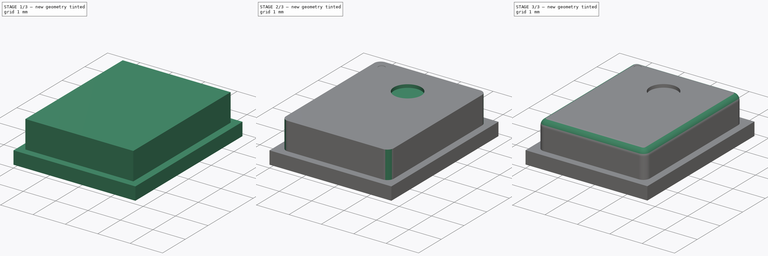
[diagram: build sequence overview — one tinted view per stage of 3, left to right]
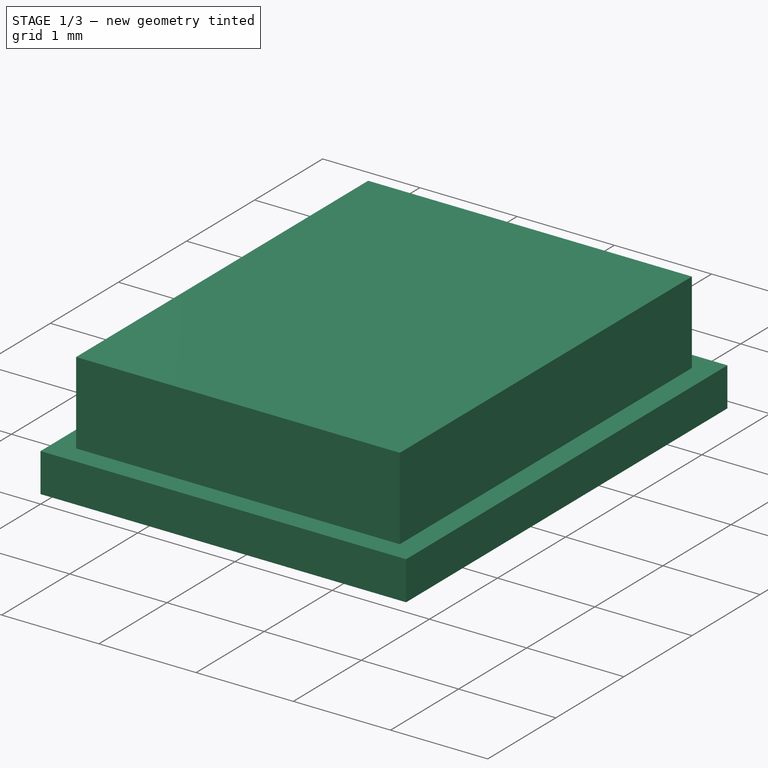
[diagram: stage 1 of 3 — iso view after this stage's code; geometry added in this stage tinted green]
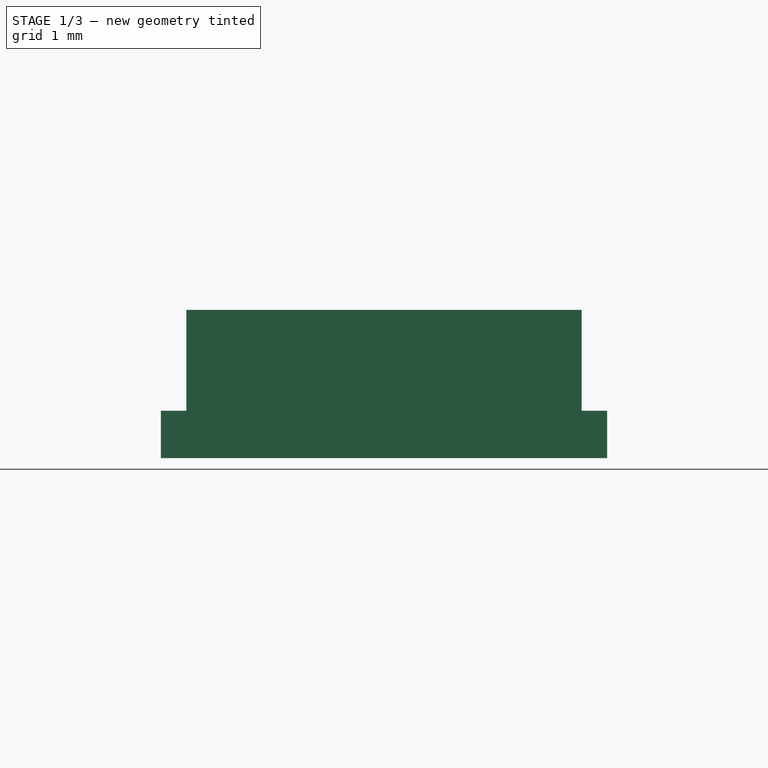
[diagram: stage 1 of 3 — front view after this stage's code; geometry added in this stage tinted green]
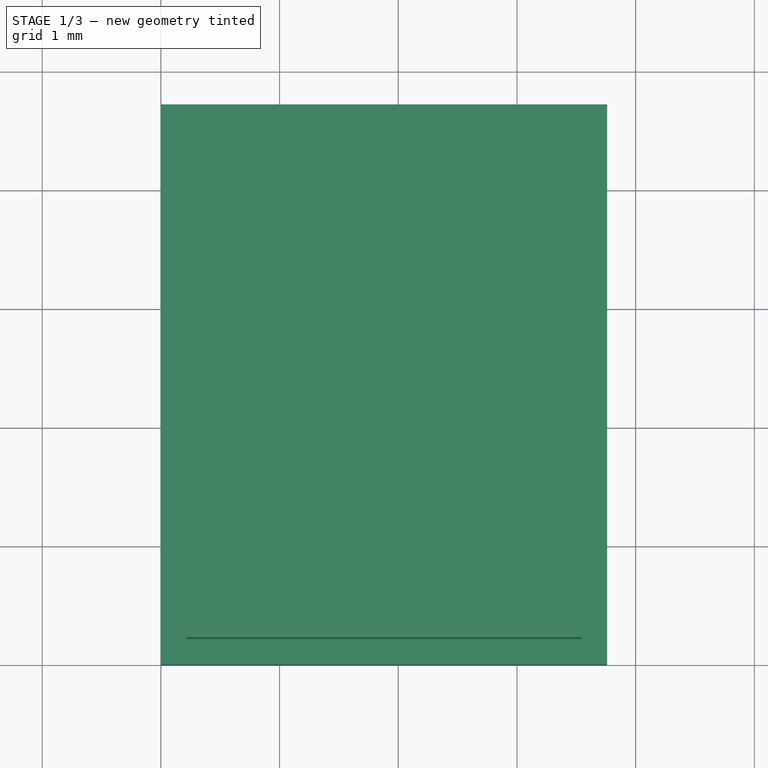
[diagram: stage 1 of 3 — top view after this stage's code; geometry added in this stage tinted green]
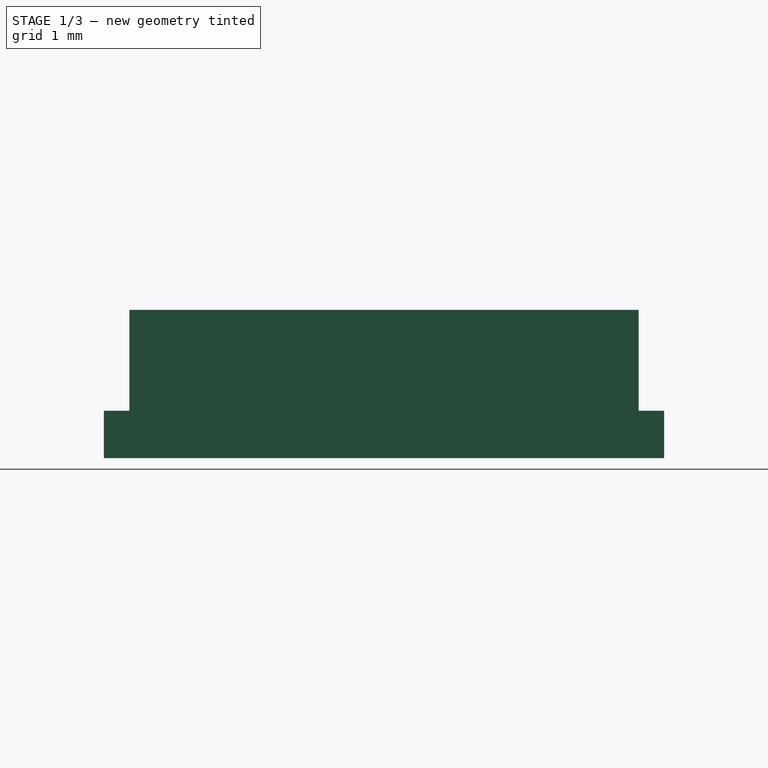
[diagram: stage 1 of 3 — right view after this stage's code; geometry added in this stage tinted green]
FCSTD DOCUMENT  (FreeCAD 0.15R4671 (Git))
Label: ST_HLGA-6_3.76x4.72mm_P1.65mm
License: All rights reserved
LicenseURL: http://es.wikipedia.org/wiki/Todos_los_derechos_reservados
objects: Sketcher::SketchObject×5, PartDesign::Pad×3, PartDesign::Pocket×2, PartDesign::Fillet×2, Part::Feature×1
note: 18 computed .brp shape members not serialized (recipe doc carries the construction recipe); baked Part::Feature solids carry a one-line shape summary decoded from their .brp

FEATURE [Sketcher::SketchObject] Sketch
  sketch-geometry (4):
    g0: LineSegment StartX=0 StartY=0 StartZ=0 EndX=3.76 EndY=0 EndZ=0
    g1: LineSegment StartX=3.76 StartY=0 StartZ=0 EndX=3.76 EndY=4.72 EndZ=0
    g2: LineSegment StartX=3.76 StartY=4.72 StartZ=0 EndX=0 EndY=4.72 EndZ=0
    g3: LineSegment StartX=0 StartY=4.72 StartZ=0 EndX=0 EndY=0 EndZ=0
  constraints (11):
    c: Coincident(g0,g1)
    c: Coincident(g1,g2)
    c: Coincident(g2,g3)
    c: Coincident(g3,g0)
    c: Horizontal(g0)
    c: Horizontal(g2)
    c: Vertical(g1)
    c: Vertical(g3)
    c: Coincident(g0,g-1)
    c: DistanceY(g1) = 4.72
    c: DistanceX(g2) = -3.76
FEATURE [PartDesign::Pad] Pad
  Length = 0.4
  Length2 = 100
  Sketch = -> Sketch
  Type = 0
FEATURE [Sketcher::SketchObject] Sketch001
  ExternalGeometry = -> [Pad]
  Placement = pos=(0,0,0.4) rot=(0,0,1;0rad)
  Support = -> Pad [Face6]
  sketch-geometry (8):
    g0: LineSegment StartX=0.215 StartY=4.505 StartZ=0 EndX=3.545 EndY=4.505 EndZ=0
    g1: LineSegment StartX=3.545 StartY=4.505 StartZ=0 EndX=3.545 EndY=0.215 EndZ=0
    g2: LineSegment StartX=3.545 StartY=0.215 StartZ=0 EndX=0.215 EndY=0.215 EndZ=0
    g3: LineSegment StartX=0.215 StartY=0.215 StartZ=0 EndX=0.215 EndY=4.505 EndZ=0
    g4: LineSegment [constr] StartX=0.215 StartY=4.505 StartZ=0 EndX=0.215 EndY=4.72 EndZ=0
    g5: LineSegment [constr] StartX=0.215 StartY=4.505 StartZ=0 EndX=0 EndY=4.505 EndZ=0
    g6: LineSegment [constr] StartX=3.545 StartY=0.215 StartZ=0 EndX=3.76 EndY=0.215 EndZ=0
    g7: LineSegment [constr] StartX=3.545 StartY=0.215 StartZ=0 EndX=3.545 EndY=0 EndZ=0
  constraints (24):
    c: Coincident(g0,g1)
    c: Coincident(g1,g2)
    c: Coincident(g2,g3)
    c: Coincident(g3,g0)
    c: Horizontal(g0)
    c: Horizontal(g2)
    c: Vertical(g1)
    c: Vertical(g3)
    c: DistanceY(g3) = 4.29
    c: DistanceX(g2) = -3.33
    c: Coincident(g4,g0)
    c: PointOnObject(g4,g-4)
    c: Vertical(g4)
    c: Coincident(g5,g0)
    c: PointOnObject(g5,g-5)
    c: Horizontal(g5)
    c: Coincident(g6,g1)
    c: PointOnObject(g6,g-3)
    c: Horizontal(g6)
    c: Coincident(g7,g1)
    c: PointOnObject(g7,g-6)
    c: Vertical(g7)
    c: Equal(g6,g5)
    c: Equal(g4,g7)
FEATURE [PartDesign::Pad] Pad001
  Length = 0.85
  Length2 = 100
  Sketch = -> Sketch001
  Type = 0
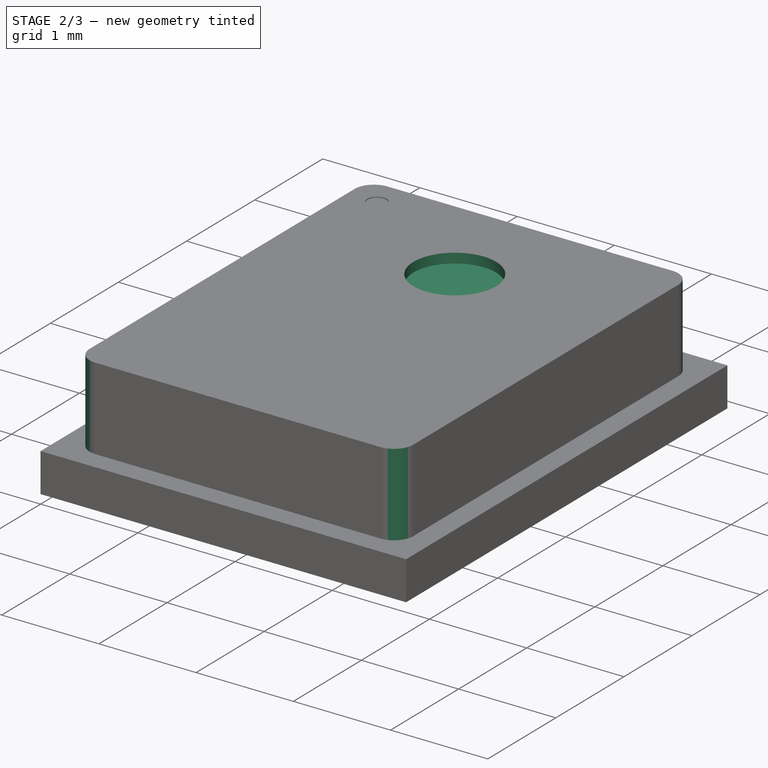
[diagram: stage 2 of 3 — iso view after this stage's code; geometry added in this stage tinted green]
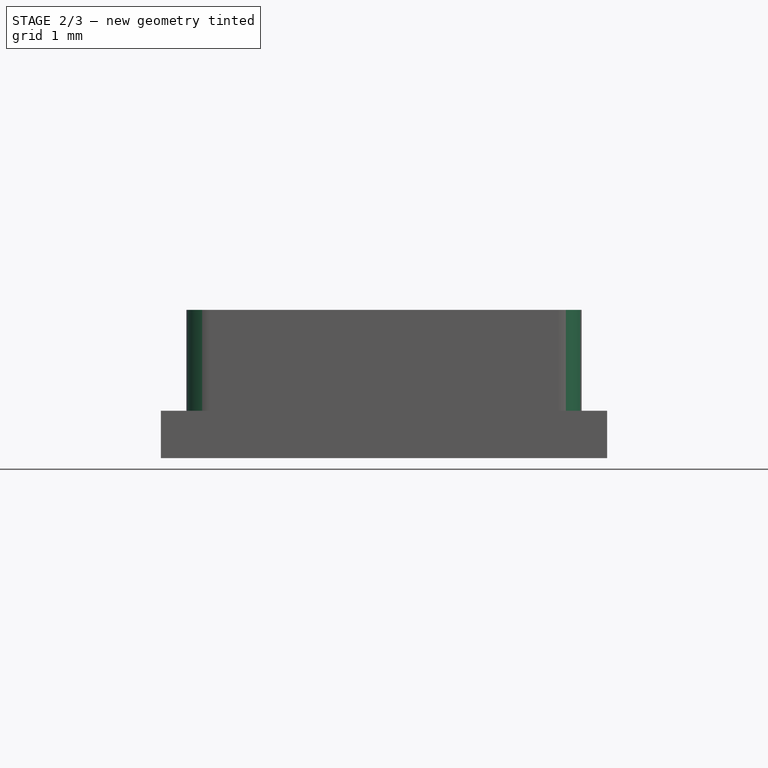
[diagram: stage 2 of 3 — front view after this stage's code; geometry added in this stage tinted green]
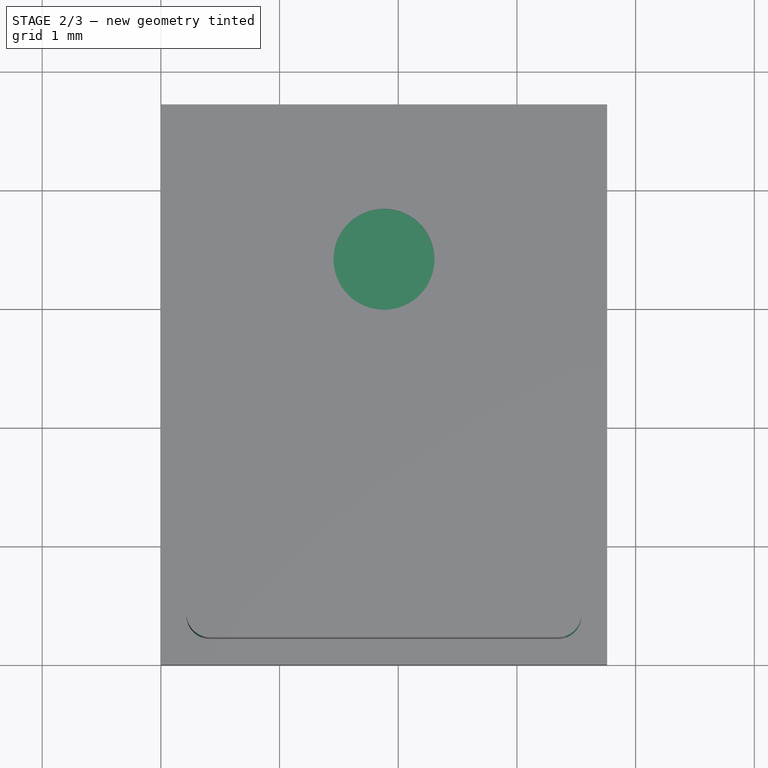
[diagram: stage 2 of 3 — top view after this stage's code; geometry added in this stage tinted green]
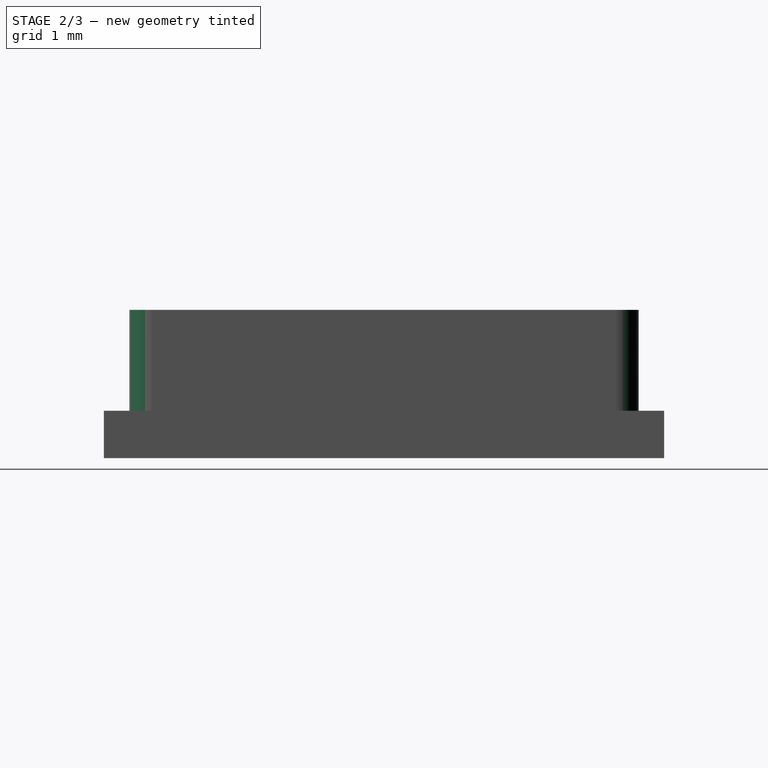
[diagram: stage 2 of 3 — right view after this stage's code; geometry added in this stage tinted green]
FEATURE [Sketcher::SketchObject] Sketch002
  ExternalGeometry = -> [Pad001]
  Placement = pos=(0,0,1.25) rot=(0,0,1;0rad)
  Support = -> Pad001 [Face11]
  sketch-geometry (4):
    g0: LineSegment [constr] StartX=0 StartY=4.72 StartZ=0 EndX=1.88 EndY=4.72 EndZ=0
    g1: LineSegment [constr] StartX=1.88 StartY=4.72 StartZ=0 EndX=3.76 EndY=4.72 EndZ=0
    g2: LineSegment [constr] StartX=1.88 StartY=4.72 StartZ=0 EndX=1.88 EndY=3.4 EndZ=0
    g3: Circle CenterX=1.88 CenterY=3.4 CenterZ=0 NormalX=0 NormalY=0 NormalZ=1 Radius=0.425
  constraints (11):
    c: Horizontal(g0)
    c: Coincident(g1,g0)
    c: Coincident(g1,g-4)
    c: Horizontal(g1)
    c: Coincident(g0,g-3)
    c: Equal(g0,g1)
    c: Coincident(g2,g0)
    c: Vertical(g2)
    c: DistanceY(g2) = -1.32
    c: Coincident(g3,g2)
    c: Radius(g3) = 0.425
FEATURE [PartDesign::Pocket] Pocket
  Length = 0.1
  Sketch = -> Sketch002
  Type = 0
FEATURE [Sketcher::SketchObject] Sketch003
  ExternalGeometry = -> [Pocket]
  Placement = pos=(0,0,1.25) rot=(0,0,1;0rad)
  Support = -> Pocket [Face11]
  sketch-geometry (3):
    g0: Circle CenterX=0.515 CenterY=4.205 CenterZ=0 NormalX=0 NormalY=0 NormalZ=1 Radius=0.1
    g1: LineSegment [constr] StartX=0.515 StartY=4.205 StartZ=0 EndX=0.215 EndY=4.205 EndZ=0
    g2: LineSegment [constr] StartX=0.515 StartY=4.205 StartZ=0 EndX=0.515 EndY=4.505 EndZ=0
  constraints (9):
    c: Coincident(g1,g0)
    c: PointOnObject(g1,g-4)
    c: Coincident(g2,g0)
    c: PointOnObject(g2,g-3)
    c: Vertical(g2)
    c: Horizontal(g1)
    c: Equal(g1,g2)
    c: DistanceX(g1) = -0.3
    c: Radius(g0) = 0.1
FEATURE [PartDesign::Pocket] Pocket001
  Length = 0.01
  Sketch = -> Sketch003
  Type = 0
FEATURE [PartDesign::Fillet] Fillet
  Base = -> Pocket001 [Edge19,Edge17,Edge23,Edge21]
  Radius = 0.2
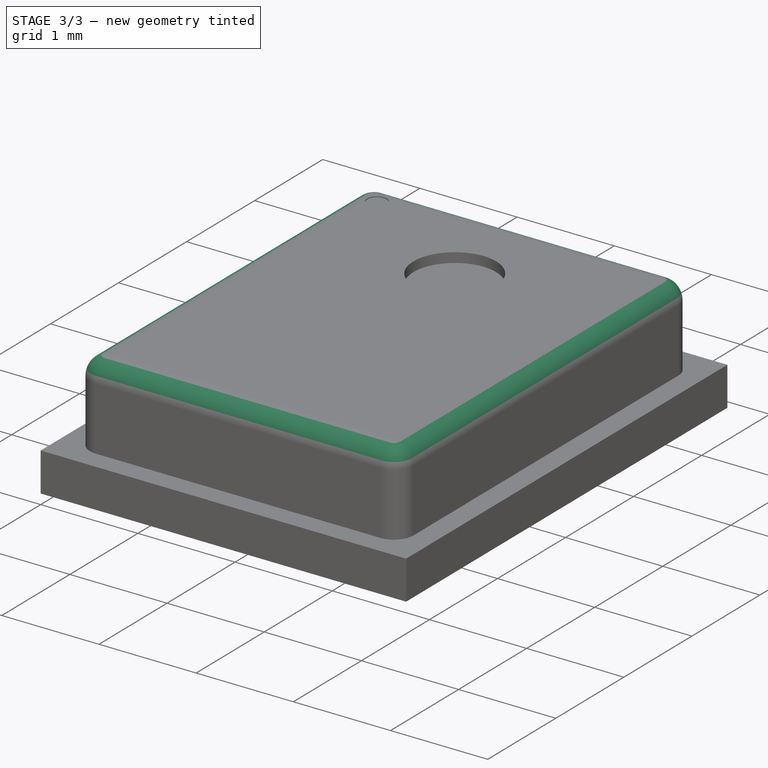
[diagram: stage 3 of 3 — iso view after this stage's code; geometry added in this stage tinted green]
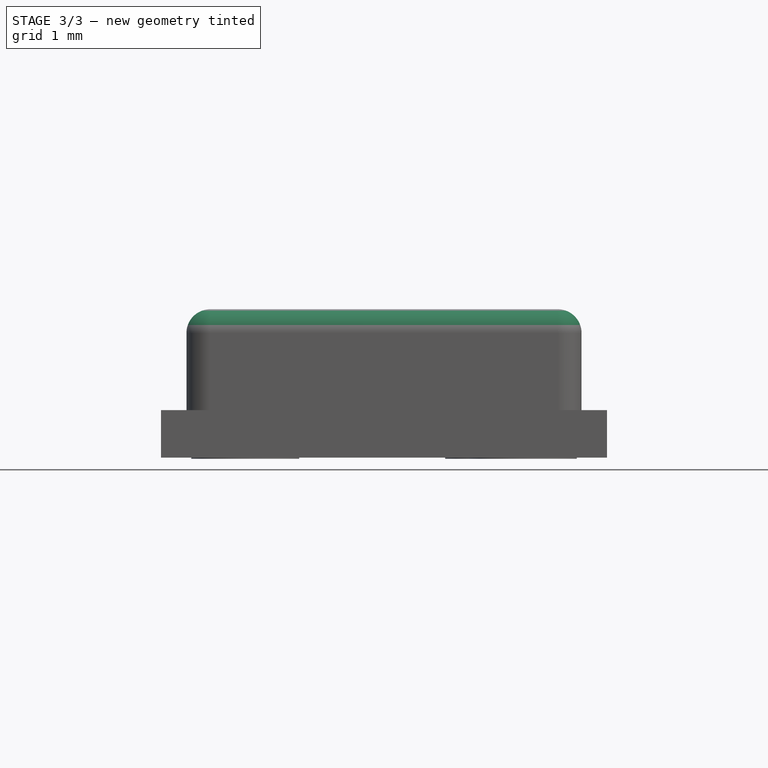
[diagram: stage 3 of 3 — front view after this stage's code; geometry added in this stage tinted green]
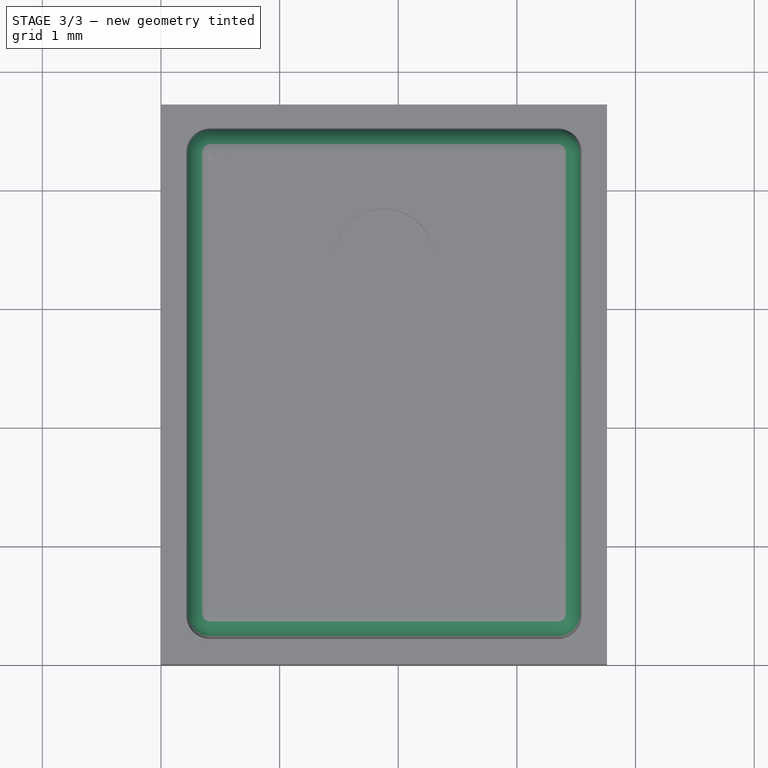
[diagram: stage 3 of 3 — top view after this stage's code; geometry added in this stage tinted green]
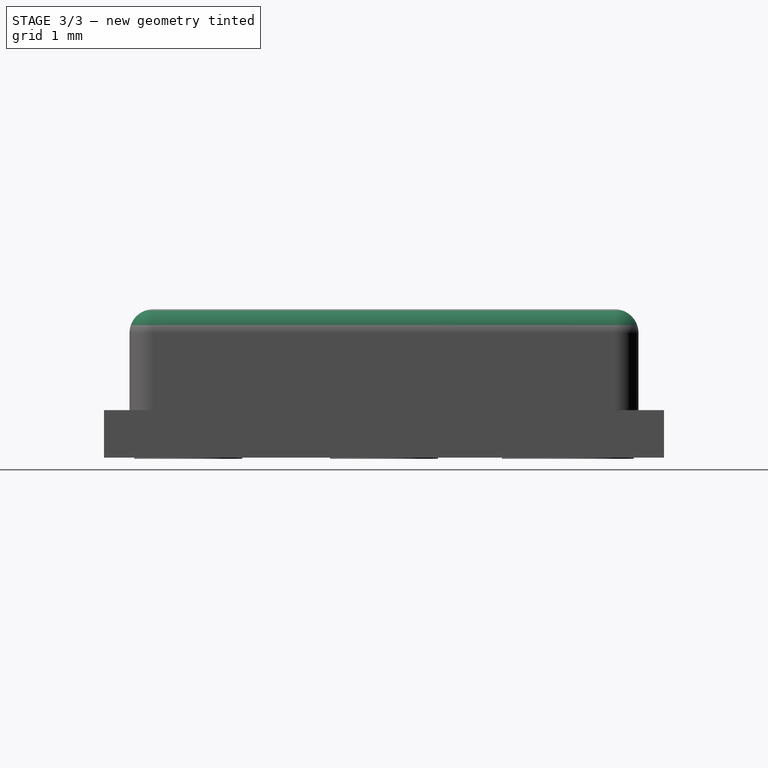
[diagram: stage 3 of 3 — right view after this stage's code; geometry added in this stage tinted green]
FEATURE [PartDesign::Fillet] Fillet001
  Base = -> Fillet [Edge15]
  Radius = 0.2
FEATURE [Sketcher::SketchObject] Sketch004
  ExternalGeometry = -> [Fillet001]
  Placement = pos=(0,0,0) rot=(1,0,0;3.14159rad)
  Support = -> Fillet001 [Face25]
  sketch-geometry (19):
    g0: Circle CenterX=3.05 CenterY=-0.71 CenterZ=0 NormalX=0 NormalY=0 NormalZ=1 Radius=0.455
    g1: Circle CenterX=3.05 CenterY=-2.36 CenterZ=0 NormalX=0 NormalY=0 NormalZ=1 Radius=0.455
    g2: Circle CenterX=0.71 CenterY=-2.36 CenterZ=0 NormalX=0 NormalY=0 NormalZ=1 Radius=0.455
    g3: Circle CenterX=0.71 CenterY=-4.01 CenterZ=0 NormalX=0 NormalY=0 NormalZ=1 Radius=0.455
    g4: LineSegment [constr] StartX=0.71 StartY=-0.71 StartZ=0 EndX=3.05 EndY=-0.71 EndZ=0
    g5: LineSegment [constr] StartX=0.71 StartY=-0.71 StartZ=0 EndX=0.71 EndY=-2.36 EndZ=0
    g6: LineSegment [constr] StartX=0.71 StartY=-2.36 StartZ=0 EndX=0.71 EndY=-4.01 EndZ=0
    g7: LineSegment [constr] StartX=3.05 StartY=-4.01 StartZ=0 EndX=3.05 EndY=-2.36 EndZ=0
    g8: LineSegment [constr] StartX=3.05 StartY=-2.36 StartZ=0 EndX=3.05 EndY=-0.71 EndZ=0
    g9: LineSegment [constr] StartX=0.71 StartY=-0.71 StartZ=0 EndX=0.71 EndY=0 EndZ=0
    g10: LineSegment [constr] StartX=0.71 StartY=-0.71 StartZ=0 EndX=0 EndY=-0.71 EndZ=0
    g11: LineSegment [constr] StartX=3.05 StartY=-4.01 StartZ=0 EndX=3.05 EndY=-4.72 EndZ=0
    g12: LineSegment [constr] StartX=3.05 StartY=-4.01 StartZ=0 EndX=3.76 EndY=-4.01 EndZ=0
    g13: Circle CenterX=0.71 CenterY=-0.71 CenterZ=0 NormalX=0 NormalY=0 NormalZ=1 Radius=0.455
    g14: ArcOfCircle CenterX=3.05 CenterY=-4.01 CenterZ=0 NormalX=0 NormalY=0 NormalZ=1 Radius=0.455 StartAngle=3.92699 EndAngle=7.06858
    g15: ArcOfCircle CenterX=2.85 CenterY=-3.81 CenterZ=0 NormalX=0 NormalY=0 NormalZ=1 Radius=0.455 StartAngle=0.785398 EndAngle=3.92699
    g16: LineSegment StartX=3.37173 StartY=-3.68827 StartZ=0 EndX=3.17173 EndY=-3.48827 EndZ=0
    g17: LineSegment StartX=2.72827 StartY=-4.33173 StartZ=0 EndX=2.52827 EndY=-4.13173 EndZ=0
    g18: LineSegment [constr] StartX=3.05 StartY=-4.01 StartZ=0 EndX=2.85 EndY=-3.81 EndZ=0
  constraints (49):
    c: Equal(g2,g3)
    c: Equal(g1,g0)
    c: Coincident(g4,g0)
    c: Coincident(g5,g2)
    c: Coincident(g6,g2)
    c: Coincident(g6,g3)
    c: Coincident(g7,g1)
    c: Coincident(g8,g1)
    c: Vertical(g5)
    c: Vertical(g6)
    c: Vertical(g8)
    c: Vertical(g7)
    c: Coincident(g8,g0)
    c: Horizontal(g4)
    c: Equal(g6,g5)
    c: Equal(g5,g8)
    c: Equal(g8,g7)
    c: PointOnObject(g9,g-4)
    c: Vertical(g9)
    c: PointOnObject(g10,g-3)
    c: Horizontal(g10)
    c: DistanceX(g4) = 2.34
    c: DistanceY(g8) = 1.65
    c: PointOnObject(g11,g-6)
    c: Vertical(g11)
    c: PointOnObject(g12,g-5)
    c: Horizontal(g12)
    c: Equal(g12,g10)
    c: Equal(g9,g11)
    c: Radius(g1) = 0.455
    c: Coincident(g13,g4)
    c: Equal(g13,g0)
    c: Coincident(g4,g5)
    c: Coincident(g4,g9)
    c: Coincident(g4,g10)
    c: Tangent(g14,g17) = 1.5708
    c: Tangent(g14,g16) = -1.5708
    c: Tangent(g16,g15) = -1.5708
    c: Tangent(g17,g15) = 1.5708
    c: Equal(g14,g15)
    c: Coincident(g14,g7)
    c: Coincident(g11,g12)
    c: Coincident(g11,g7)
    c: Equal(g1,g14)
    c: Coincident(g18,g7)
    c: Coincident(g18,g15)
    c: Angle(g7,g18) = 0.785398
    c: DistanceY(g15,g7) = -0.2
    c: Equal(g2,g13)
FEATURE [PartDesign::Pad] Pad002
  Length = 0.01
  Length2 = 100
  Sketch = -> Sketch004
  Type = 0
FEATURE [Part::Feature] Pad002001  label="ST_HLGA-6_3.76x4.72mm_P1.65mm"
  shape: bbox 3.76 x 4.72 x 1.26 mm, 42 faces (baked)
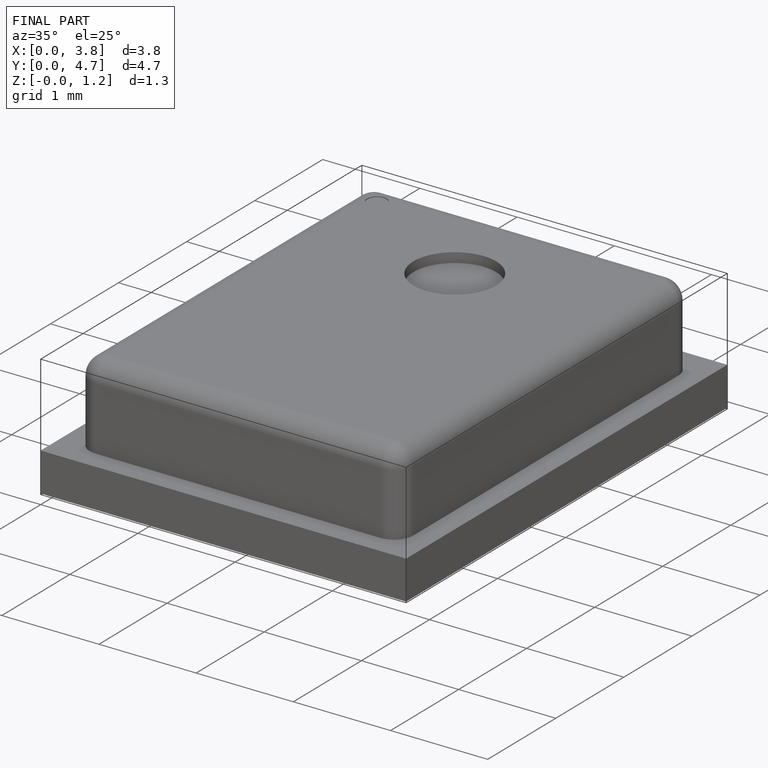
[diagram: finished part — iso view with bounding-box wireframe]
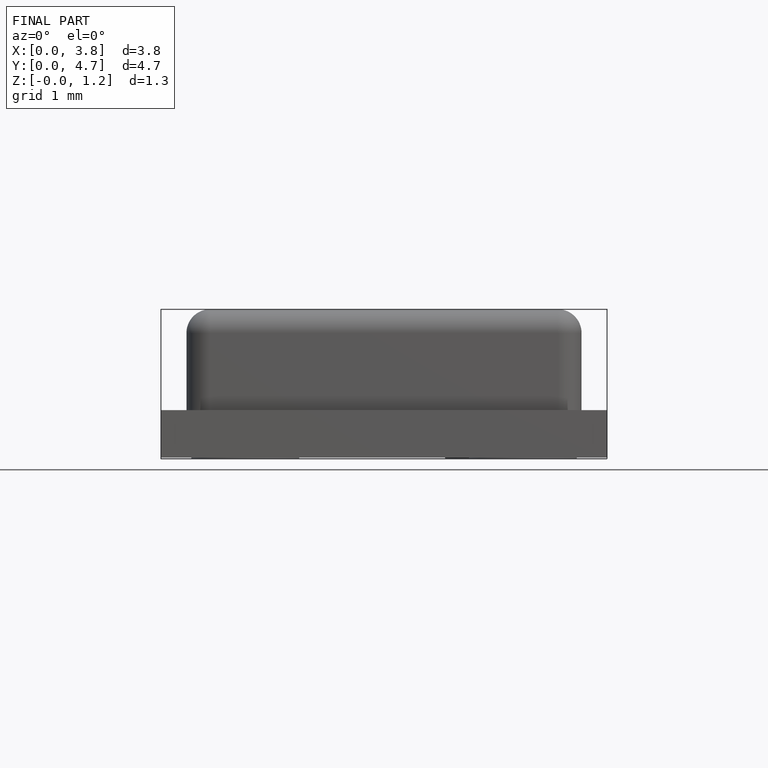
[diagram: finished part — front view with bounding-box wireframe]
